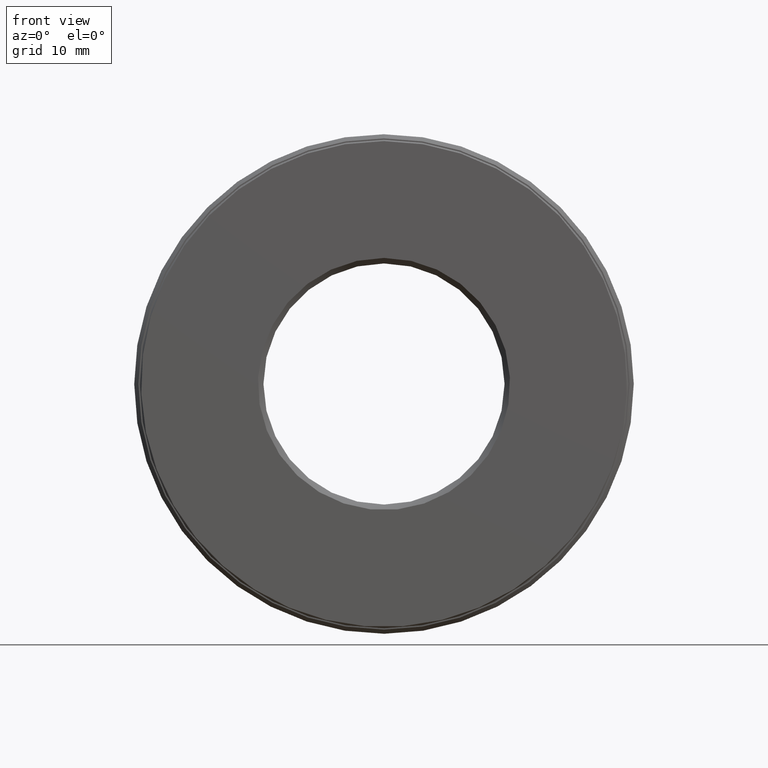
[diagram: clean part render]
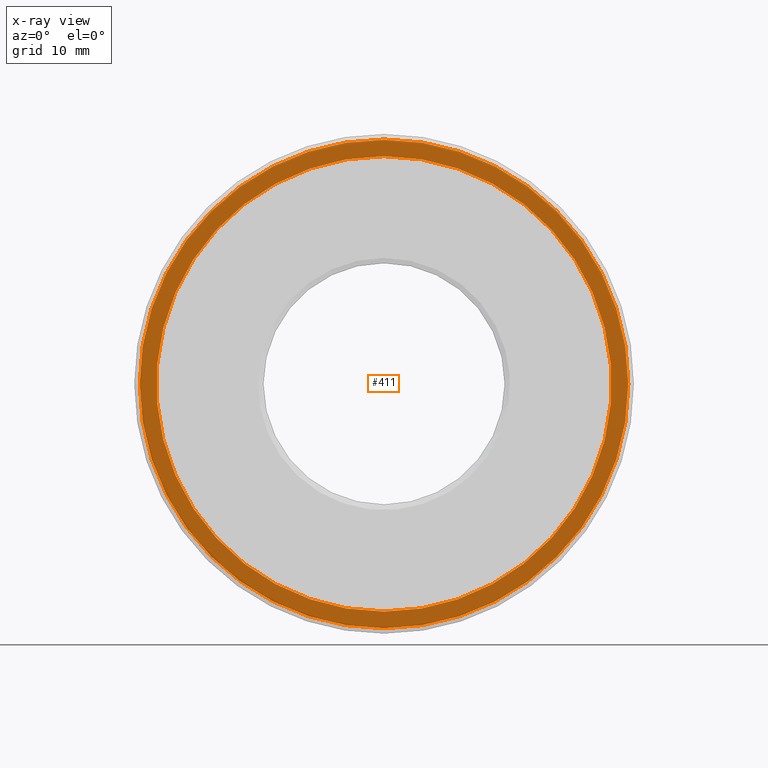
[diagram: x-ray — body ghosted, one internal face saturated and labeled with its STEP entity id]
A machine part, front view, then the same camera in x-ray: the body is ghosted and one INTERNAL B-rep face — a face not visible from any outside direction — is saturated and labeled: STEP entity #411.
In plain terms, the highlighted planar face has unit normal (-0, 1, 0).
Its self-contained STEP definition (entity closure, byte-faithful):
#9 = PLANE ( 'NONE',  #516 ) ;
#19 = DIRECTION ( 'NONE',  ( 0.0000000000000000000, 0.0000000000000000000, 1.000000000000000000 ) ) ;
#48 = CARTESIAN_POINT ( 'NONE',  ( 0.0000000000000000000, 0.6524999999999999700, 0.8862500000000000900 ) ) ;
#107 = DIRECTION ( 'NONE',  ( -0.0000000000000000000, 1.000000000000000000, -0.0000000000000000000 ) ) ;
#115 = VERTEX_POINT ( 'NONE', #48 ) ;
#144 = CARTESIAN_POINT ( 'NONE',  ( 0.0000000000000000000, 0.6524999999999999700, 0.8262499999999999300 ) ) ;
#159 = DIRECTION ( 'NONE',  ( -0.0000000000000000000, 1.000000000000000000, 0.0000000000000000000 ) ) ;
#190 = CARTESIAN_POINT ( 'NONE',  ( 0.0000000000000000000, 0.6524999999999999700, 0.0000000000000000000 ) ) ;
#194 = FACE_BOUND ( 'NONE', #324, .T. ) ;
#214 = EDGE_LOOP ( 'NONE', ( #441 ) ) ;
#239 = VERTEX_POINT ( 'NONE', #144 ) ;
#250 = CARTESIAN_POINT ( 'NONE',  ( 0.0000000000000000000, 0.6524999999999999700, 0.0000000000000000000 ) ) ;
#251 = EDGE_CURVE ( 'NONE', #239, #239, #281, .T. ) ;
#277 = ORIENTED_EDGE ( 'NONE', *, *, #251, .T. ) ;
#281 = CIRCLE ( 'NONE', #307, 0.8262499999999999300 ) ;
#284 = DIRECTION ( 'NONE',  ( 0.0000000000000000000, 0.0000000000000000000, 1.000000000000000000 ) ) ;
#297 = DIRECTION ( 'NONE',  ( 0.0000000000000000000, 0.0000000000000000000, 1.000000000000000000 ) ) ;
#307 = AXIS2_PLACEMENT_3D ( 'NONE', #190, #564, #284 ) ;
#319 = FACE_OUTER_BOUND ( 'NONE', #214, .T. ) ;
#324 = EDGE_LOOP ( 'NONE', ( #277 ) ) ;
#339 = CIRCLE ( 'NONE', #569, 0.8862500000000000900 ) ;
#411 = ADVANCED_FACE ( 'NONE', ( #319, #194 ), #9, .F. ) ;
#441 = ORIENTED_EDGE ( 'NONE', *, *, #469, .F. ) ;
#443 = CARTESIAN_POINT ( 'NONE',  ( 0.0000000000000000000, 0.6524999999999999700, 0.0000000000000000000 ) ) ;
#469 = EDGE_CURVE ( 'NONE', #115, #115, #339, .T. ) ;
#516 = AXIS2_PLACEMENT_3D ( 'NONE', #250, #159, #19 ) ;
#564 = DIRECTION ( 'NONE',  ( -0.0000000000000000000, 1.000000000000000000, -0.0000000000000000000 ) ) ;
#569 = AXIS2_PLACEMENT_3D ( 'NONE', #443, #107, #297 ) ;